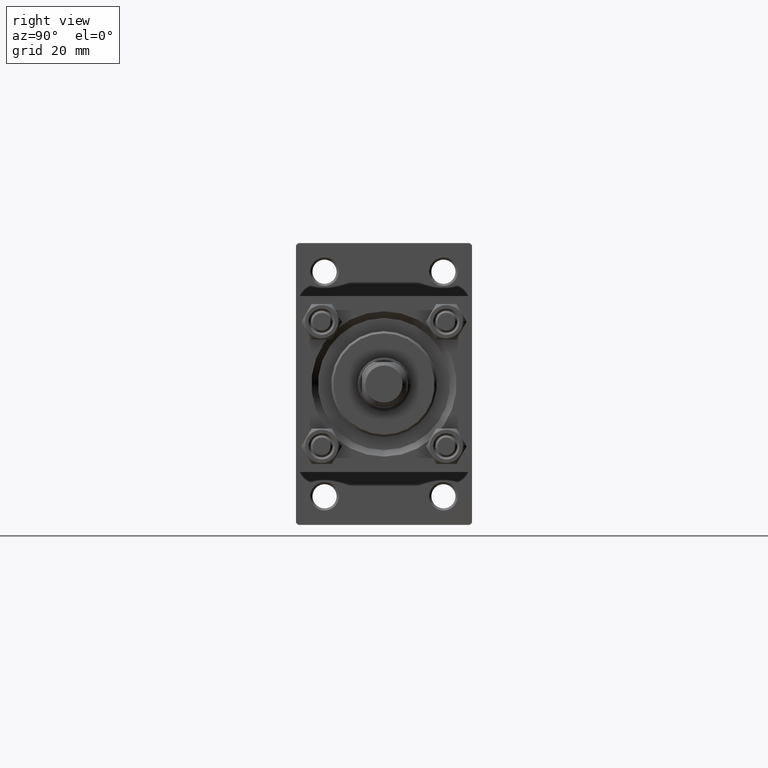
[diagram: clean part render]
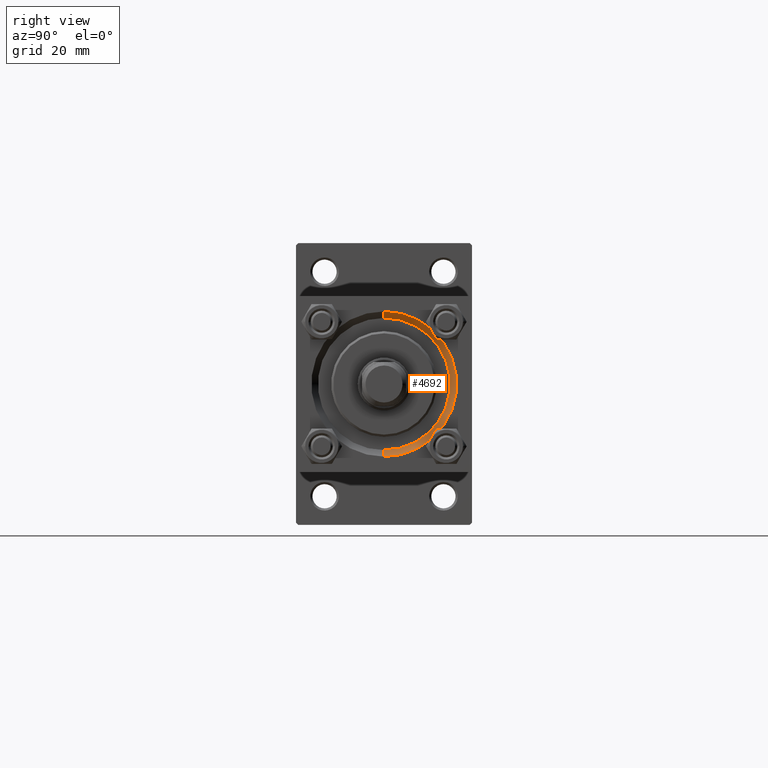
[diagram: same view with one face highlighted and labeled with its STEP entity id]
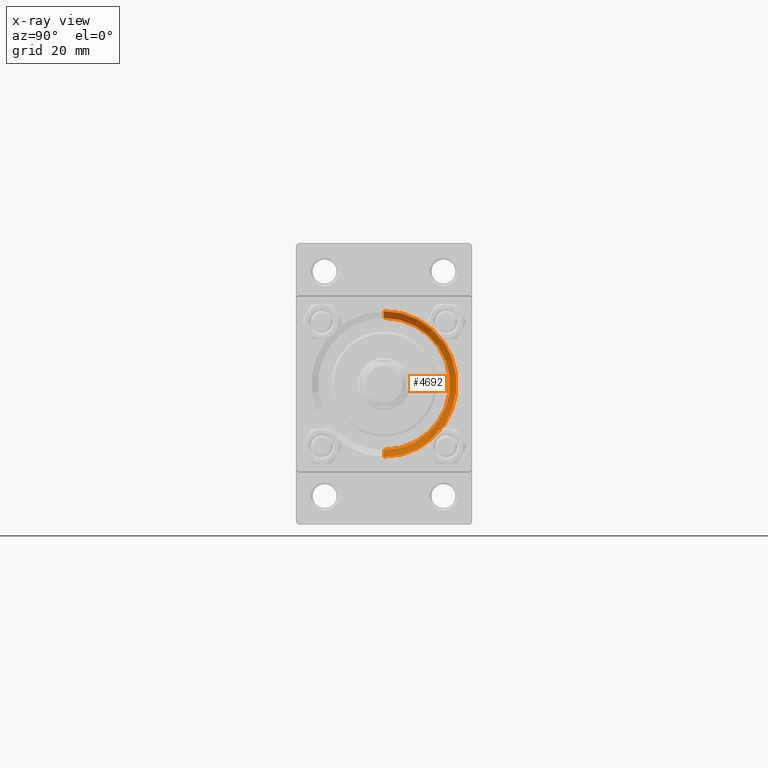
[diagram: x-ray of the same camera — body ghosted, the highlighted face saturated]
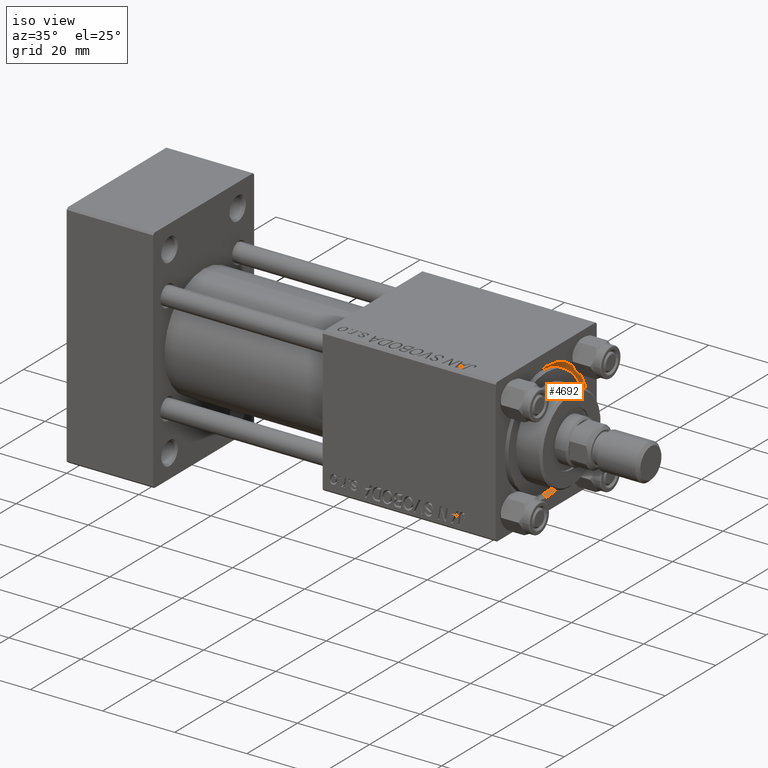
[diagram: same view with one face highlighted and labeled with its STEP entity id]
A machine part, right view. The second image highlights one B-rep face of the part: STEP entity #4692.
The next image is the same camera in x-ray: the body ghosted, the highlighted face saturated — about 0% of this face is hidden behind the body in this view.
A second angle (iso view) of the same face is appended — the face is thin or edge-on in the first view.
In plain terms, the highlighted conical surface has half-angle 45 deg.
Its self-contained STEP definition (entity closure, byte-faithful):
#1075 = VECTOR ( 'NONE', #40641, 1000.000000000000114 ) ;
#1593 = AXIS2_PLACEMENT_3D ( 'NONE', #4841, #34951, #34705 ) ;
#2072 = VERTEX_POINT ( 'NONE', #41089 ) ;
#2379 = CARTESIAN_POINT ( 'NONE',  ( 117.5000000000000142, 0.000000000000000000, -15.00000000000000000 ) ) ;
#3826 = ORIENTED_EDGE ( 'NONE', *, *, #40365, .F. ) ;
#4011 = ORIENTED_EDGE ( 'NONE', *, *, #47011, .F. ) ;
#4692 = ADVANCED_FACE ( 'NONE', ( #47114 ), #20349, .F. ) ;
#4841 = CARTESIAN_POINT ( 'NONE',  ( 119.0000000000000142, 0.000000000000000000, 0.000000000000000000 ) ) ;
#8183 = VECTOR ( 'NONE', #23058, 1000.000000000000114 ) ;
#10853 = ORIENTED_EDGE ( 'NONE', *, *, #13404, .T. ) ;
#11271 = CARTESIAN_POINT ( 'NONE',  ( 119.0000000000000142, 2.020667218593131128E-15, 16.49999999999998579 ) ) ;
#11320 = CARTESIAN_POINT ( 'NONE',  ( 117.5000000000000142, 1.836970198721029589E-15, 15.00000000000000000 ) ) ;
#13120 = CARTESIAN_POINT ( 'NONE',  ( 117.5000000000000142, 0.000000000000000000, -15.00000000000000000 ) ) ;
#13404 = EDGE_CURVE ( 'NONE', #36426, #29324, #28411, .T. ) ;
#14057 = CIRCLE ( 'NONE', #29518, 15.00000000000000000 ) ;
#14381 = LINE ( 'NONE', #11320, #8183 ) ;
#15030 = DIRECTION ( 'NONE',  ( 1.000000000000000000, 0.000000000000000000, 0.000000000000000000 ) ) ;
#16286 = DIRECTION ( 'NONE',  ( 1.000000000000000000, 0.000000000000000000, 0.000000000000000000 ) ) ;
#16790 = VERTEX_POINT ( 'NONE', #11271 ) ;
#20259 = EDGE_CURVE ( 'NONE', #36426, #2072, #14057, .T. ) ;
#20349 = CONICAL_SURFACE ( 'NONE', #44759, 15.00000000000000000, 0.7853981633974437271 ) ;
#23058 = DIRECTION ( 'NONE',  ( 0.7071067811865507924, 8.659560562354892183E-17, 0.7071067811865441310 ) ) ;
#27015 = CARTESIAN_POINT ( 'NONE',  ( 117.5000000000000142, 0.000000000000000000, 0.000000000000000000 ) ) ;
#28411 = LINE ( 'NONE', #13120, #1075 ) ;
#29324 = VERTEX_POINT ( 'NONE', #32664 ) ;
#29518 = AXIS2_PLACEMENT_3D ( 'NONE', #49425, #15030, #34391 ) ;
#30295 = ORIENTED_EDGE ( 'NONE', *, *, #20259, .F. ) ;
#32664 = CARTESIAN_POINT ( 'NONE',  ( 119.0000000000000142, 0.000000000000000000, -16.49999999999998579 ) ) ;
#34391 = DIRECTION ( 'NONE',  ( 0.000000000000000000, 0.000000000000000000, 1.000000000000000000 ) ) ;
#34705 = DIRECTION ( 'NONE',  ( 0.000000000000000000, 0.000000000000000000, 1.000000000000000000 ) ) ;
#34951 = DIRECTION ( 'NONE',  ( -1.000000000000000000, -0.000000000000000000, -0.000000000000000000 ) ) ;
#36426 = VERTEX_POINT ( 'NONE', #2379 ) ;
#40365 = EDGE_CURVE ( 'NONE', #16790, #29324, #47961, .T. ) ;
#40641 = DIRECTION ( 'NONE',  ( 0.7071067811865507924, 0.000000000000000000, -0.7071067811865441310 ) ) ;
#41089 = CARTESIAN_POINT ( 'NONE',  ( 117.5000000000000142, 1.836970198721029589E-15, 15.00000000000000000 ) ) ;
#44759 = AXIS2_PLACEMENT_3D ( 'NONE', #27015, #16286, #50198 ) ;
#47011 = EDGE_CURVE ( 'NONE', #2072, #16790, #14381, .T. ) ;
#47114 = FACE_OUTER_BOUND ( 'NONE', #50389, .T. ) ;
#47961 = CIRCLE ( 'NONE', #1593, 16.49999999999998579 ) ;
#49425 = CARTESIAN_POINT ( 'NONE',  ( 117.5000000000000142, 0.000000000000000000, 0.000000000000000000 ) ) ;
#50198 = DIRECTION ( 'NONE',  ( 0.000000000000000000, 0.000000000000000000, -1.000000000000000000 ) ) ;
#50389 = EDGE_LOOP ( 'NONE', ( #4011, #30295, #10853, #3826 ) ) ;